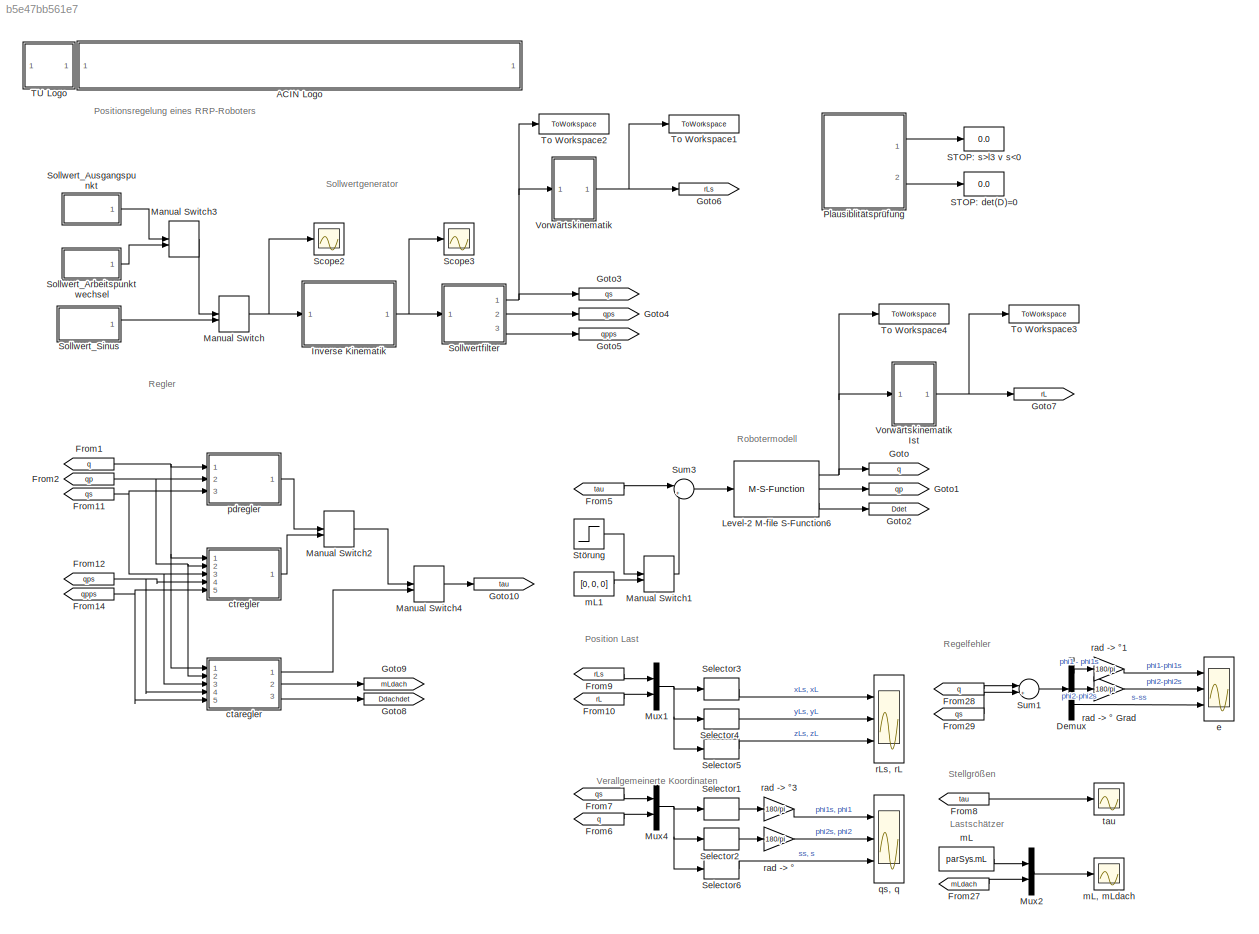
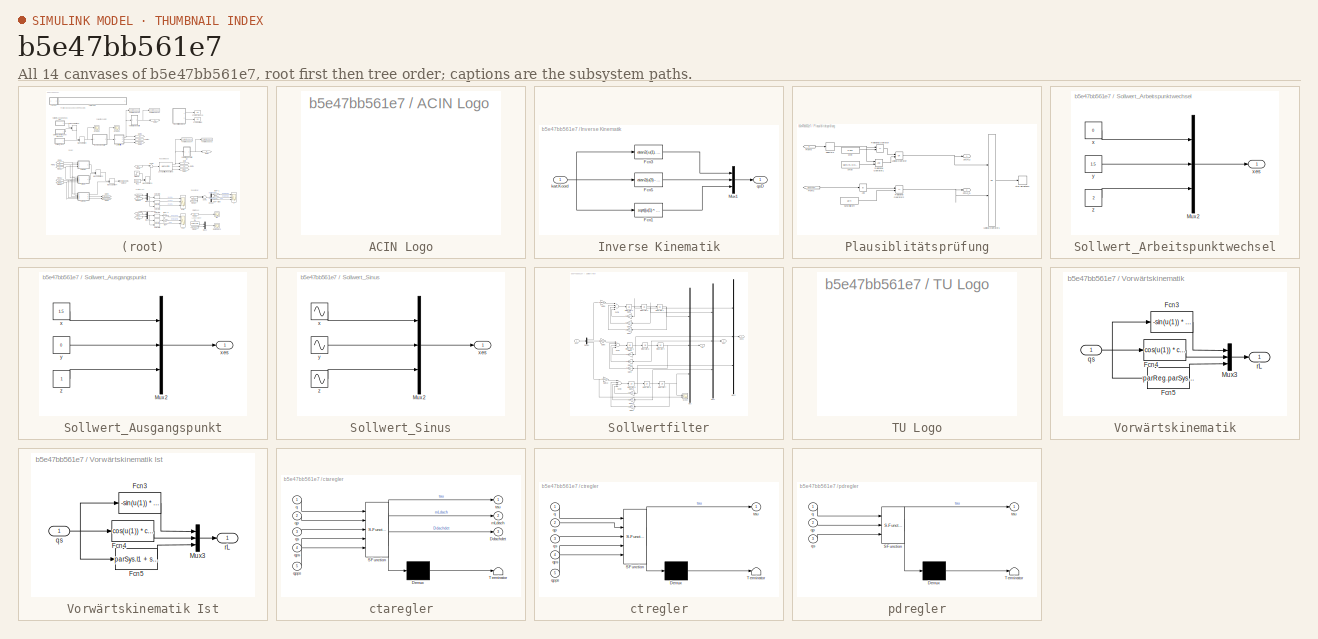
[diagram: thumbnail index - all 14 canvases of the model, root first then tree order]
MODEL slx_b5e47bb561e7
KIND model
CONFIG InitFcn = set_parameter
CONFIG StartFcn = set_parameter
CONFIG StopFcn = Auswertung
BLOCK [SubSystem] ACIN Logo
  FunctionWithSeparateData = off
  MaskHideContents = off
  MinAlgLoopOccurrences = off
  Opaque = off
  Ports = []
  PropExecContextOutsideSubsystem = off
  RTWSystemCode = Auto
  RequestExecContextInheritance = off
  UserDataPersistent = on
  Variant = off
BLOCK [Demux] Demux
  DisplayOption = bar
  Outputs = 3
  Ports = [1, 3]
BLOCK [From] From1
  CloseFcn = tagdialog Close
  GotoTag = q
  TagVisibility = global
BLOCK [From] From10
  CloseFcn = tagdialog Close
  GotoTag = rL
  TagVisibility = global
BLOCK [From] From11
  CloseFcn = tagdialog Close
  GotoTag = qs
  TagVisibility = global
BLOCK [From] From12
  CloseFcn = tagdialog Close
  GotoTag = qps
  TagVisibility = global
BLOCK [From] From14
  CloseFcn = tagdialog Close
  GotoTag = qpps
  TagVisibility = global
BLOCK [From] From2
  CloseFcn = tagdialog Close
  GotoTag = qp
  TagVisibility = global
BLOCK [From] From27
  CloseFcn = tagdialog Close
  GotoTag = mLdach
  TagVisibility = global
BLOCK [From] From28
  CloseFcn = tagdialog Close
  GotoTag = q
  TagVisibility = global
BLOCK [From] From29
  CloseFcn = tagdialog Close
  GotoTag = qs
  TagVisibility = global
BLOCK [From] From5
  CloseFcn = tagdialog Close
  GotoTag = tau
  TagVisibility = global
BLOCK [From] From6
  CloseFcn = tagdialog Close
  GotoTag = q
  TagVisibility = global
BLOCK [From] From7
  CloseFcn = tagdialog Close
  GotoTag = qs
  TagVisibility = global
BLOCK [From] From8
  CloseFcn = tagdialog Close
  GotoTag = tau
  TagVisibility = global
BLOCK [From] From9
  CloseFcn = tagdialog Close
  GotoTag = rLs
  TagVisibility = global
BLOCK [Goto] Goto
  GotoTag = q
  TagVisibility = global
BLOCK [Goto] Goto1
  GotoTag = qp
  TagVisibility = global
BLOCK [Goto] Goto10
  GotoTag = tau
  TagVisibility = global
BLOCK [Goto] Goto2
  GotoTag = Ddet
  TagVisibility = global
BLOCK [Goto] Goto3
  GotoTag = qs
  TagVisibility = global
BLOCK [Goto] Goto4
  GotoTag = qps
  TagVisibility = global
BLOCK [Goto] Goto5
  GotoTag = qpps
  TagVisibility = global
BLOCK [Goto] Goto6
  GotoTag = rLs
  TagVisibility = global
BLOCK [Goto] Goto7
  GotoTag = rL
  TagVisibility = global
BLOCK [Goto] Goto8
  GotoTag = Ddachdet
  TagVisibility = global
BLOCK [Goto] Goto9
  GotoTag = mLdach
  TagVisibility = global
BLOCK [SubSystem] Inverse Kinematik
  FunctionWithSeparateData = off
  MaskHideContents = off
  MinAlgLoopOccurrences = off
  Opaque = off
  Ports = [1, 1]
  PropExecContextOutsideSubsystem = off
  RTWSystemCode = Auto
  RequestExecContextInheritance = off
  Variant = off
BLOCK [Fcn] Inverse Kinematik/Fcn1
  Expr = sqrt((u(1) ^ 2 + u(2) ^ 2 + u(3) ^ 2 - 2 * u(3) * parReg.parSys.l1 + parReg.parSys.l1 ^ 2)) - parReg.parSys.l2
BLOCK [Fcn] Inverse Kinematik/Fcn3
  Expr = atan2(-u(1), u(2))
BLOCK [Fcn] Inverse Kinematik/Fcn5
  Expr = atan2(u(3) - parReg.parSys.l1, sqrt(u(1) ^ 2 + u(2) ^ 2))
BLOCK [Mux] Inverse Kinematik/Mux1
  DisplayOption = bar
  Inputs = 3
  Ports = [3, 1]
BLOCK [Inport] Inverse Kinematik/kart.Koord
  IconDisplay = Port number
BLOCK [Outport] Inverse Kinematik/qsD
  IconDisplay = Port number
BLOCK [M-S-Function] Level-2 M-file S-Function6
  FunctionName = Roboter_S_m
  Parameters = m1,m2,m3,mL,l1,l2,l3,Ixx1,Iyy1,Izz1,Ixx2,Iyy2,Izz2,Ixx3,Iyy3,Izz3,d1,d2,d3,phi10,phi20,s0
  Ports = [1, 3]
BLOCK [ManualSwitch] Manual Switch
  CurrentSetting = 0
BLOCK [ManualSwitch] Manual Switch1
  CurrentSetting = 0
BLOCK [ManualSwitch] Manual Switch2
  CurrentSetting = 0
BLOCK [ManualSwitch] Manual Switch3
  CurrentSetting = 0
BLOCK [ManualSwitch] Manual Switch4
  CurrentSetting = 0
BLOCK [Mux] Mux1
  DisplayOption = bar
  Inputs = 2
  Ports = [2, 1]
BLOCK [Mux] Mux2
  DisplayOption = bar
  Inputs = 2
  Ports = [2, 1]
BLOCK [Mux] Mux4
  DisplayOption = bar
  Inputs = 2
  Ports = [2, 1]
BLOCK [SubSystem] Plausiblitätsprüfung
  FunctionWithSeparateData = off
  MaskHideContents = off
  MinAlgLoopOccurrences = off
  Opaque = off
  Ports = [0, 2]
  PropExecContextOutsideSubsystem = off
  RTWSystemCode = Auto
  RequestExecContextInheritance = off
  Variant = off
BLOCK [Abs] Plausiblitätsprüfung/Abs
  SaturateOnIntegerOverflow = off
BLOCK [From] Plausiblitätsprüfung/From2
  CloseFcn = tagdialog Close
  GotoTag = Ddachdet
  TagVisibility = global
BLOCK [From] Plausiblitätsprüfung/From6
  CloseFcn = tagdialog Close
  GotoTag = q
  TagVisibility = global
BLOCK [Logic] Plausiblitätsprüfung/Logical Operator
  AllPortsSameDT = off
  Operator = OR
  OutDataTypeStr = boolean
  Ports = [2, 1]
BLOCK [Logic] Plausiblitätsprüfung/Logical Operator1
  AllPortsSameDT = off
  Operator = OR
  OutDataTypeStr = boolean
  Ports = [2, 1]
BLOCK [RelationalOperator] Plausiblitätsprüfung/Relational Operator
  InputSameDT = off
  Operator = <=
  OutDataTypeStr = boolean
  Ports = [2, 1]
BLOCK [RelationalOperator] Plausiblitätsprüfung/Relational Operator1
  InputSameDT = off
  OutDataTypeStr = boolean
  Ports = [2, 1]
BLOCK [RelationalOperator] Plausiblitätsprüfung/Relational Operator2
  InputSameDT = off
  Operator = <=
  OutDataTypeStr = boolean
  Ports = [2, 1]
BLOCK [Outport] Plausiblitätsprüfung/STOP_D
  IconDisplay = Port number
  Port = 2
BLOCK [Outport] Plausiblitätsprüfung/STOP_s
  IconDisplay = Port number
BLOCK [Constant] Plausiblitätsprüfung/Schwellwert
  Value = 1e-4
BLOCK [Selector] Plausiblitätsprüfung/Selector3
  IndexOptions = Index vector (dialog)
  Indices = [3]
  InputPortWidth = 3
  OutputSizes = 1
  Ports = [1, 1]
BLOCK [Stop] Plausiblitätsprüfung/Stop Simulation1
BLOCK [Constant] Plausiblitätsprüfung/smax
  Value = parSys.l3-0.001
BLOCK [Constant] Plausiblitätsprüfung/smin
  Value = 0.001
BLOCK [Display] STOP: det(D)=0
  Decimation = 1
  Ports = [1]
BLOCK [Display] STOP: s>l3 v s<0
  Decimation = 1
  Ports = [1]
BLOCK [Scope] Scope2
  DataFormat = StructureWithTime
  Decimation = 1
  Grid = on
  LimitDataPoints = off
  MaxDataPoints = 5000
  Ports = [1]
  SampleInput = off
  SampleTime = -1
  SaveName = ScopeData2
  SaveToWorkspace = off
  ShowLegends = off
  TickLabels = OneTimeTick
  TimeRange = auto
  YMax = 1.6875
  YMin = -0.1875
  ZoomMode = on
BLOCK [Scope] Scope3
  DataFormat = StructureWithTime
  Decimation = 1
  Grid = on
  LimitDataPoints = off
  MaxDataPoints = 5000
  Ports = [1]
  SampleInput = off
  SampleTime = -1
  SaveName = ScopeData3
  SaveToWorkspace = off
  ShowLegends = off
  TickLabels = OneTimeTick
  TimeRange = auto
  YMax = 1.1
  YMin = -1.2
  ZoomMode = on
BLOCK [Selector] Selector1
  IndexOptions = Index vector (dialog)
  Indices = [1 4]
  InputPortWidth = 6
  OutputSizes = 1
  Ports = [1, 1]
BLOCK [Selector] Selector2
  IndexOptions = Index vector (dialog)
  Indices = [2 5]
  InputPortWidth = 6
  OutputSizes = 1
  Ports = [1, 1]
BLOCK [Selector] Selector3
  IndexOptions = Index vector (dialog)
  Indices = [1 4]
  InputPortWidth = 6
  OutputSizes = 1
  Ports = [1, 1]
BLOCK [Selector] Selector4
  IndexOptions = Index vector (dialog)
  Indices = [2 5]
  InputPortWidth = 6
  OutputSizes = 1
  Ports = [1, 1]
BLOCK [Selector] Selector5
  IndexOptions = Index vector (dialog)
  Indices = [3 6]
  InputPortWidth = 6
  OutputSizes = 1
  Ports = [1, 1]
BLOCK [Selector] Selector6
  IndexOptions = Index vector (dialog)
  Indices = [3 6]
  InputPortWidth = 6
  OutputSizes = 1
  Ports = [1, 1]
BLOCK [SubSystem] Sollwert_Arbeitspunktwechsel
  FunctionWithSeparateData = off
  MaskHideContents = off
  MinAlgLoopOccurrences = off
  Opaque = off
  Ports = [0, 1]
  PropExecContextOutsideSubsystem = off
  RTWSystemCode = Auto
  RequestExecContextInheritance = off
  Variant = off
BLOCK [Mux] Sollwert_Arbeitspunktwechsel/Mux2
  DisplayOption = bar
  Inputs = 3
  Ports = [3, 1]
BLOCK [Constant] Sollwert_Arbeitspunktwechsel/x
  Value = 0
BLOCK [Outport] Sollwert_Arbeitspunktwechsel/xes
  IconDisplay = Port number
BLOCK [Constant] Sollwert_Arbeitspunktwechsel/y
  Value = 1.5
BLOCK [Constant] Sollwert_Arbeitspunktwechsel/z
  Value = 2
BLOCK [SubSystem] Sollwert_Ausgangspunkt
  FunctionWithSeparateData = off
  MaskHideContents = off
  MinAlgLoopOccurrences = off
  Opaque = off
  Ports = [0, 1]
  PropExecContextOutsideSubsystem = off
  RTWSystemCode = Auto
  RequestExecContextInheritance = off
  Variant = off
BLOCK [Mux] Sollwert_Ausgangspunkt/Mux2
  DisplayOption = bar
  Inputs = 3
  Ports = [3, 1]
BLOCK [Constant] Sollwert_Ausgangspunkt/x
  Value = 1.5
BLOCK [Outport] Sollwert_Ausgangspunkt/xes
  IconDisplay = Port number
BLOCK [Constant] Sollwert_Ausgangspunkt/y
  Value = 0
BLOCK [Constant] Sollwert_Ausgangspunkt/z
BLOCK [SubSystem] Sollwert_Sinus
  FunctionWithSeparateData = off
  MaskHideContents = off
  MinAlgLoopOccurrences = off
  Opaque = off
  Ports = [0, 1]
  PropExecContextOutsideSubsystem = off
  RTWSystemCode = Auto
  RequestExecContextInheritance = off
  Variant = off
BLOCK [Mux] Sollwert_Sinus/Mux2
  DisplayOption = bar
  Inputs = 3
  Ports = [3, 1]
BLOCK [Sin] Sollwert_Sinus/x
  Amplitude = 1.5
  Frequency = 2*pi*parReg.traj_fKreis
  Phase = pi/2
  Ports = [0, 1]
  SampleTime = 0
BLOCK [Outport] Sollwert_Sinus/xes
  IconDisplay = Port number
BLOCK [Sin] Sollwert_Sinus/y
  Amplitude = 1.5
  Frequency = 2*pi*parReg.traj_fKreis
  Ports = [0, 1]
  SampleTime = 0
BLOCK [Sin] Sollwert_Sinus/z
  Amplitude = 0.5
  Bias = 1.5
  Frequency = 2*pi*parReg.traj_fz
  Phase = -pi/2
  Ports = [0, 1]
  SampleTime = 0
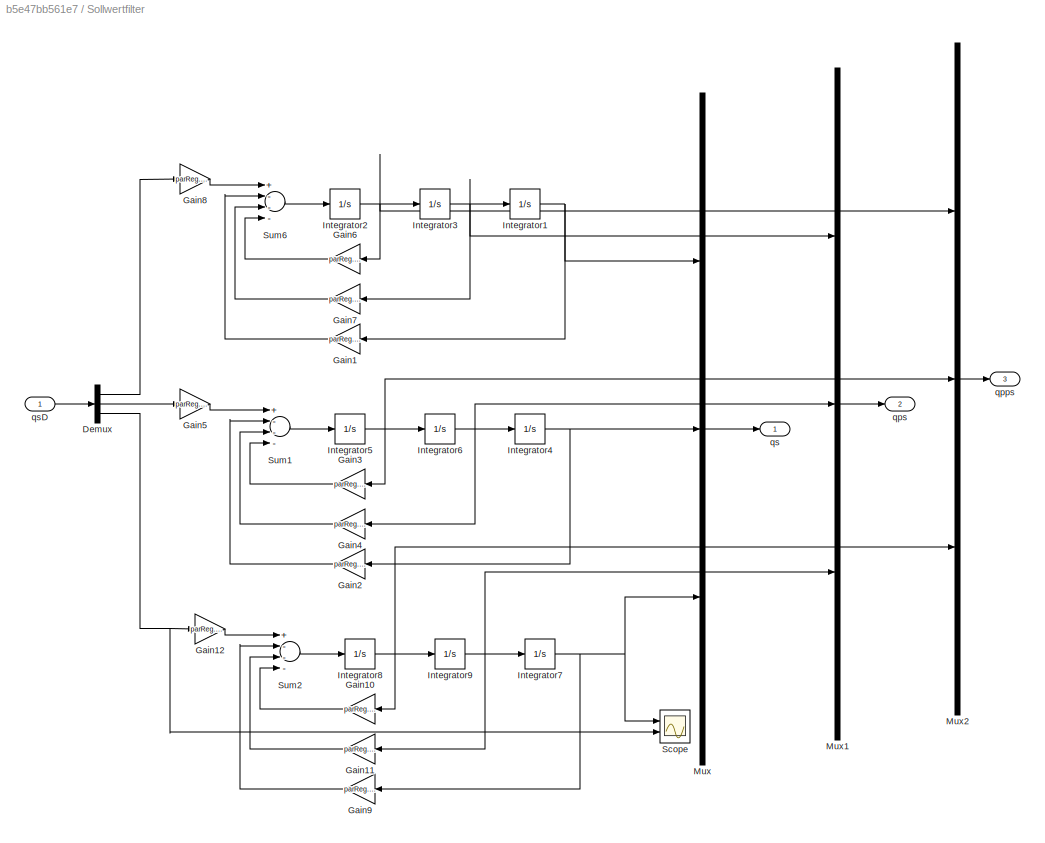
BLOCK [SubSystem] Sollwertfilter
  FunctionWithSeparateData = off
  MaskHideContents = off
  MinAlgLoopOccurrences = off
  Opaque = off
  Ports = [1, 3]
  PropExecContextOutsideSubsystem = off
  RTWSystemCode = Auto
  RequestExecContextInheritance = off
  Variant = off
BLOCK [Demux] Sollwertfilter/Demux
  DisplayOption = bar
  Outputs = 3
  Ports = [1, 3]
BLOCK [Gain] Sollwertfilter/Gain1
  Gain = parReg.par_filt_a0
BLOCK [Gain] Sollwertfilter/Gain10
  Gain = parReg.par_filt_a2
BLOCK [Gain] Sollwertfilter/Gain11
  Gain = parReg.par_filt_a1
BLOCK [Gain] Sollwertfilter/Gain12
  Gain = parReg.par_filt_V
BLOCK [Gain] Sollwertfilter/Gain2
  Gain = parReg.par_filt_a0
BLOCK [Gain] Sollwertfilter/Gain3
  Gain = parReg.par_filt_a2
BLOCK [Gain] Sollwertfilter/Gain4
  Gain = parReg.par_filt_a1
BLOCK [Gain] Sollwertfilter/Gain5
  Gain = parReg.par_filt_V
BLOCK [Gain] Sollwertfilter/Gain6
  Gain = parReg.par_filt_a2
BLOCK [Gain] Sollwertfilter/Gain7
  Gain = parReg.par_filt_a1
BLOCK [Gain] Sollwertfilter/Gain8
  Gain = parReg.par_filt_V
BLOCK [Gain] Sollwertfilter/Gain9
  Gain = parReg.par_filt_a0
BLOCK [Integrator] Sollwertfilter/Integrator1
  InitialCondition = parReg.traj_phi10
  Ports = [1, 1]
BLOCK [Integrator] Sollwertfilter/Integrator2
  Ports = [1, 1]
BLOCK [Integrator] Sollwertfilter/Integrator3
  Ports = [1, 1]
BLOCK [Integrator] Sollwertfilter/Integrator4
  InitialCondition = parReg.traj_phi20
  Ports = [1, 1]
BLOCK [Integrator] Sollwertfilter/Integrator5
  Ports = [1, 1]
BLOCK [Integrator] Sollwertfilter/Integrator6
  Ports = [1, 1]
BLOCK [Integrator] Sollwertfilter/Integrator7
  InitialCondition = parReg.traj_s0
  Ports = [1, 1]
BLOCK [Integrator] Sollwertfilter/Integrator8
  Ports = [1, 1]
BLOCK [Integrator] Sollwertfilter/Integrator9
  Ports = [1, 1]
BLOCK [Mux] Sollwertfilter/Mux
  DisplayOption = bar
  Inputs = 3
  Ports = [3, 1]
BLOCK [Mux] Sollwertfilter/Mux1
  DisplayOption = bar
  Inputs = 3
  Ports = [3, 1]
BLOCK [Mux] Sollwertfilter/Mux2
  DisplayOption = bar
  Inputs = 3
  Ports = [3, 1]
BLOCK [Scope] Sollwertfilter/Scope
  DataFormat = StructureWithTime
  Decimation = 1
  Grid = on
  LimitDataPoints = off
  MaxDataPoints = 5000
  NumInputPorts = 2
  Ports = [2]
  SampleInput = off
  SampleTime = -1
  SaveName = ScopeData8
  SaveToWorkspace = off
  ShowLegends = off
  TickLabels = OneTimeTick
  TimeRange = auto
  YMax = 5~5
  YMin = -5~-5
  ZoomMode = on
BLOCK [Sum] Sollwertfilter/Sum1
  Inputs = +---
  Ports = [4, 1]
BLOCK [Sum] Sollwertfilter/Sum2
  Inputs = +---
  Ports = [4, 1]
BLOCK [Sum] Sollwertfilter/Sum6
  Inputs = +---
  Ports = [4, 1]
BLOCK [Outport] Sollwertfilter/qpps
  IconDisplay = Port number
  Port = 3
BLOCK [Outport] Sollwertfilter/qps
  IconDisplay = Port number
  Port = 2
BLOCK [Outport] Sollwertfilter/qs
  IconDisplay = Port number
BLOCK [Inport] Sollwertfilter/qsD
  IconDisplay = Port number
BLOCK [Step] Störung
  After = [300, 300, 200]
  SampleTime = 0
BLOCK [Sum] Sum1
  IconShape = round
  InputSameDT = off
  Inputs = |+-
  OutDataTypeStr = Inherit: Inherit via internal rule
  Ports = [2, 1]
  SaturateOnIntegerOverflow = off
BLOCK [Sum] Sum3
  IconShape = round
  InputSameDT = off
  Inputs = |++
  OutDataTypeStr = Inherit: Inherit via internal rule
  Ports = [2, 1]
  SaturateOnIntegerOverflow = off
BLOCK [SubSystem] TU Logo
  FunctionWithSeparateData = off
  MaskHideContents = off
  MinAlgLoopOccurrences = off
  Opaque = off
  Ports = []
  PropExecContextOutsideSubsystem = off
  RTWSystemCode = Auto
  RequestExecContextInheritance = off
  UserDataPersistent = on
  Variant = off
BLOCK [ToWorkspace] To Workspace1
  MaxDataPoints = inf
  Ports = [1]
  SampleTime = -1
  SaveFormat = Structure With Time
  VariableName = simout_rLs
BLOCK [ToWorkspace] To Workspace2
  MaxDataPoints = inf
  Ports = [1]
  SampleTime = -1
  SaveFormat = Structure With Time
  VariableName = simout_qs
BLOCK [ToWorkspace] To Workspace3
  MaxDataPoints = inf
  Ports = [1]
  SampleTime = -1
  SaveFormat = Structure With Time
  VariableName = simout_rL
BLOCK [ToWorkspace] To Workspace4
  MaxDataPoints = inf
  Ports = [1]
  SampleTime = -1
  SaveFormat = Structure With Time
  VariableName = simout_q
BLOCK [SubSystem] Vorwärtskinematik
  FunctionWithSeparateData = off
  MaskHideContents = off
  MinAlgLoopOccurrences = off
  Opaque = off
  Ports = [1, 1]
  PropExecContextOutsideSubsystem = off
  RTWSystemCode = Auto
  RequestExecContextInheritance = off
  Variant = off
BLOCK [SubSystem] Vorwärtskinematik Ist
  FunctionWithSeparateData = off
  MaskHideContents = off
  MinAlgLoopOccurrences = off
  Opaque = off
  Ports = [1, 1]
  PropExecContextOutsideSubsystem = off
  RTWSystemCode = Auto
  RequestExecContextInheritance = off
  Variant = off
BLOCK [Fcn] Vorwärtskinematik Ist/Fcn3
  Expr = -sin(u(1)) * cos(u(2)) * (parSys.l2 + u(3))
BLOCK [Fcn] Vorwärtskinematik Ist/Fcn4
  Expr = cos(u(1)) * cos(u(2)) * (parSys.l2 + u(3))
BLOCK [Fcn] Vorwärtskinematik Ist/Fcn5
  Expr = parSys.l1 + sin(u(2)) * parSys.l2 + sin(u(2)) * u(3)
BLOCK [Mux] Vorwärtskinematik Ist/Mux3
  DisplayOption = bar
  Inputs = 3
  Ports = [3, 1]
BLOCK [Inport] Vorwärtskinematik Ist/qs
  IconDisplay = Port number
BLOCK [Outport] Vorwärtskinematik Ist/rL
  IconDisplay = Port number
BLOCK [Fcn] Vorwärtskinematik/Fcn3
  Expr = -sin(u(1)) * cos(u(2)) * (parReg.parSys.l2 + u(3))
BLOCK [Fcn] Vorwärtskinematik/Fcn4
  Expr = cos(u(1)) * cos(u(2)) * (parReg.parSys.l2 + u(3))
BLOCK [Fcn] Vorwärtskinematik/Fcn5
  Expr = parReg.parSys.l1 + sin(u(2)) * parReg.parSys.l2 + sin(u(2)) * u(3)
BLOCK [Mux] Vorwärtskinematik/Mux3
  DisplayOption = bar
  Inputs = 3
  Ports = [3, 1]
BLOCK [Inport] Vorwärtskinematik/qs
  IconDisplay = Port number
BLOCK [Outport] Vorwärtskinematik/rL
  IconDisplay = Port number
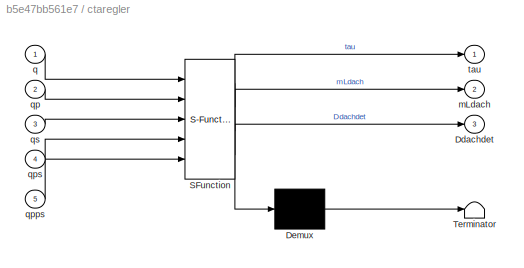
BLOCK [SubSystem] ctaregler
  ErrorFcn = Stateflow.Translate.translate
  FunctionWithSeparateData = off
  MaskHideContents = off
  MinAlgLoopOccurrences = off
  Opaque = off
  PermitHierarchicalResolution = ParametersOnly
  Ports = [5, 3]
  PropExecContextOutsideSubsystem = off
  RTWSystemCode = Auto
  RequestExecContextInheritance = off
  SFBlockType = MATLAB Function
  TreatAsAtomicUnit = on
  Variant = off
BLOCK [Demux] ctaregler/ Demux 
  Outputs = 1
  Ports = [1, 1]
BLOCK [S-Function] ctaregler/ SFunction 
  EnableBusSupport = on
  FunctionName = sf_sfun
  Parameters = parReg,parSys
  PortCounts = [5 4]
  Ports = [5, 4]
  SFunctionDeploymentMode = off
  Tag = Stateflow S-Function Roboter_RRP_Sim_2013a 3
BLOCK [Terminator] ctaregler/ Terminator 
BLOCK [Outport] ctaregler/Ddachdet
  IconDisplay = Port number
  Port = 3
BLOCK [Outport] ctaregler/mLdach
  IconDisplay = Port number
  Port = 2
BLOCK [Inport] ctaregler/q
  IconDisplay = Port number
BLOCK [Inport] ctaregler/qp
  IconDisplay = Port number
  Port = 2
BLOCK [Inport] ctaregler/qpps
  IconDisplay = Port number
  Port = 5
BLOCK [Inport] ctaregler/qps
  IconDisplay = Port number
  Port = 4
BLOCK [Inport] ctaregler/qs
  IconDisplay = Port number
  Port = 3
BLOCK [Outport] ctaregler/tau
  IconDisplay = Port number
BLOCK [SubSystem] ctregler
  ErrorFcn = Stateflow.Translate.translate
  FunctionWithSeparateData = off
  MaskHideContents = off
  MinAlgLoopOccurrences = off
  Opaque = off
  PermitHierarchicalResolution = ParametersOnly
  Ports = [5, 1]
  PropExecContextOutsideSubsystem = off
  RTWSystemCode = Auto
  RequestExecContextInheritance = off
  SFBlockType = MATLAB Function
  TreatAsAtomicUnit = on
  Variant = off
BLOCK [Demux] ctregler/ Demux 
  Outputs = 1
  Ports = [1, 1]
BLOCK [S-Function] ctregler/ SFunction 
  EnableBusSupport = on
  FunctionName = sf_sfun
  Parameters = parReg,parSys
  PortCounts = [5 2]
  Ports = [5, 2]
  SFunctionDeploymentMode = off
  Tag = Stateflow S-Function Roboter_RRP_Sim_2013a 1
BLOCK [Terminator] ctregler/ Terminator 
BLOCK [Inport] ctregler/q
  IconDisplay = Port number
BLOCK [Inport] ctregler/qp
  IconDisplay = Port number
  Port = 2
BLOCK [Inport] ctregler/qpps
  IconDisplay = Port number
  Port = 5
BLOCK [Inport] ctregler/qps
  IconDisplay = Port number
  Port = 4
BLOCK [Inport] ctregler/qs
  IconDisplay = Port number
  Port = 3
BLOCK [Outport] ctregler/tau
  IconDisplay = Port number
BLOCK [Scope] e
  DataFormat = StructureWithTime
  Decimation = 1
  Grid = on
  LimitDataPoints = off
  MaxDataPoints = 5000
  NumInputPorts = 3
  Ports = [3]
  SampleInput = off
  SampleTime = -1
  SaveName = ScopeData7
  SaveToWorkspace = off
  ShowLegends = off
  TickLabels = OneTimeTick
  TimeRange = 5
  YMax = 50.62503~50.66531~0.28152
  YMin = -5.62523~-5.98776~-0.03366
  ZoomMode = on
BLOCK [Constant] mL
  Value = parSys.mL
BLOCK [Scope] mL, mLdach
  DataFormat = StructureWithTime
  Decimation = 1
  Grid = on
  LimitDataPoints = off
  MaxDataPoints = 5000
  Ports = [1]
  SampleInput = off
  SampleTime = -1
  SaveName = ScopeData6
  SaveToWorkspace = off
  ShowLegends = off
  TickLabels = OneTimeTick
  TimeRange = 5
  YMax = 53.75
  YMin = 16.25
  ZoomMode = on
BLOCK [Constant] mL1
  Value = [0, 0, 0]
BLOCK [SubSystem] pdregler
  ErrorFcn = Stateflow.Translate.translate
  FunctionWithSeparateData = off
  MaskHideContents = off
  MinAlgLoopOccurrences = off
  Opaque = off
  PermitHierarchicalResolution = ParametersOnly
  Ports = [3, 1]
  PropExecContextOutsideSubsystem = off
  RTWSystemCode = Auto
  RequestExecContextInheritance = off
  SFBlockType = MATLAB Function
  TreatAsAtomicUnit = on
  Variant = off
BLOCK [Demux] pdregler/ Demux 
  Outputs = 1
  Ports = [1, 1]
BLOCK [S-Function] pdregler/ SFunction 
  EnableBusSupport = on
  FunctionName = sf_sfun
  Parameters = parReg,parSys
  PortCounts = [3 2]
  Ports = [3, 2]
  SFunctionDeploymentMode = off
  Tag = Stateflow S-Function Roboter_RRP_Sim_2013a 2
BLOCK [Terminator] pdregler/ Terminator 
BLOCK [Inport] pdregler/q
  IconDisplay = Port number
BLOCK [Inport] pdregler/qp
  IconDisplay = Port number
  Port = 2
BLOCK [Inport] pdregler/qs
  IconDisplay = Port number
  Port = 3
BLOCK [Outport] pdregler/tau
  IconDisplay = Port number
BLOCK [Scope] qs, q
  DataFormat = StructureWithTime
  Decimation = 1
  Grid = on
  LimitDataPoints = off
  MaxDataPoints = 5000
  NumInputPorts = 3
  Ports = [3]
  SampleInput = off
  SampleTime = -1
  SaveName = ScopeData
  SaveToWorkspace = off
  ShowLegends = off
  TickLabels = OneTimeTick
  TimeRange = auto
  YMax = -85.5~0.1~0.500003
  YMin = -94.5~0~0.5
  ZoomMode = on
BLOCK [Scope] rLs, rL
  DataFormat = StructureWithTime
  Decimation = 1
  Grid = on
  LimitDataPoints = off
  MaxDataPoints = 5000
  NumInputPorts = 3
  Ports = [3]
  SampleInput = off
  SampleTime = -1
  SaveName = ScopeData5
  SaveToWorkspace = off
  ShowLegends = off
  TickLabels = OneTimeTick
  TimeRange = 3
  YMax = 1.575~9.18486e-017~1.0025
  YMin = 1.425~9.18485e-017~1
  ZoomMode = on
BLOCK [Gain] rad -> °
  Gain = 180/pi
  OutDataTypeStr = Inherit: Inherit via internal rule
  ParamDataTypeStr = Inherit: Inherit via internal rule
  SaturateOnIntegerOverflow = off
BLOCK [Gain] rad -> ° Grad
  Gain = 180/pi
  OutDataTypeStr = Inherit: Inherit via internal rule
  ParamDataTypeStr = Inherit: Inherit via internal rule
  SaturateOnIntegerOverflow = off
BLOCK [Gain] rad -> °1
  Gain = 180/pi
  OutDataTypeStr = Inherit: Inherit via internal rule
  ParamDataTypeStr = Inherit: Inherit via internal rule
  SaturateOnIntegerOverflow = off
BLOCK [Gain] rad -> °3
  Gain = 180/pi
  OutDataTypeStr = Inherit: Inherit via internal rule
  ParamDataTypeStr = Inherit: Inherit via internal rule
  SaturateOnIntegerOverflow = off
BLOCK [Scope] tau
  DataFormat = StructureWithTime
  Decimation = 1
  Grid = on
  LimitDataPoints = off
  MaxDataPoints = 5000
  Ports = [1]
  SampleInput = off
  SampleTime = -1
  SaveName = ScopeData1
  SaveToWorkspace = off
  ShowLegends = off
  TickLabels = OneTimeTick
  TimeRange = auto
  YMax = 1938.98967
  YMin = -1150.15255
  ZoomMode = on
ANNOTATION (root): Lastschätzer
ANNOTATION (root): Position Last
ANNOTATION (root): Positionsregelung eines RRP-Roboters
ANNOTATION (root): Regelfehler
ANNOTATION (root): Regler
ANNOTATION (root): Robotermodell
ANNOTATION (root): Sollwertgenerator
ANNOTATION (root): Stellgrößen
ANNOTATION (root): Verallgemeinerte Koordinaten
LINE Demux:1 -> rad -> °1:1
LINE Demux:2 -> rad -> ° Grad:1
LINE Demux:3 -> e:3
LINE From10:1 -> Mux1:2
NET From11:1 -> ctaregler:3, ctregler:3, pdregler:3
NET From12:1 -> ctaregler:4, ctregler:4
NET From14:1 -> ctaregler:5, ctregler:5
NET From1:1 -> ctaregler:1, ctregler:1, pdregler:1
LINE From27:1 -> Mux2:2
LINE From28:1 -> Sum1:1
LINE From29:1 -> Sum1:2
NET From2:1 -> ctaregler:2, ctregler:2, pdregler:2
LINE From5:1 -> Sum3:1
LINE From6:1 -> Mux4:2
LINE From7:1 -> Mux4:1
LINE From8:1 -> tau:1
LINE From9:1 -> Mux1:1
LINE Inverse Kinematik/Fcn1:1 -> Inverse Kinematik/Mux1:3
LINE Inverse Kinematik/Fcn3:1 -> Inverse Kinematik/Mux1:1
LINE Inverse Kinematik/Fcn5:1 -> Inverse Kinematik/Mux1:2
LINE Inverse Kinematik/Mux1:1 -> Inverse Kinematik/qsD:1
NET Inverse Kinematik/kart.Koord:1 -> Inverse Kinematik/Fcn1:1, Inverse Kinematik/Fcn3:1, Inverse Kinematik/Fcn5:1
NET Inverse Kinematik:1 -> Scope3:1, Sollwertfilter:1
NET Level-2 M-file S-Function6:1 -> Goto:1, To Workspace4:1, Vorwärtskinematik Ist:1
LINE Level-2 M-file S-Function6:2 -> Goto1:1
LINE Level-2 M-file S-Function6:3 -> Goto2:1
LINE Manual Switch1:1 -> Sum3:2
LINE Manual Switch2:1 -> Manual Switch4:1
LINE Manual Switch3:1 -> Manual Switch:1
LINE Manual Switch4:1 -> Goto10:1
NET Manual Switch:1 -> Inverse Kinematik:1, Scope2:1
NET Mux1:1 -> Selector3:1, Selector4:1, Selector5:1
LINE Mux2:1 -> mL, mLdach:1
NET Mux4:1 -> Selector1:1, Selector2:1, Selector6:1
LINE Plausiblitätsprüfung/Abs:1 -> Plausiblitätsprüfung/Relational Operator2:1
LINE Plausiblitätsprüfung/From2:1 -> Plausiblitätsprüfung/Abs:1
LINE Plausiblitätsprüfung/From6:1 -> Plausiblitätsprüfung/Selector3:1
LINE Plausiblitätsprüfung/Logical Operator1:1 -> Plausiblitätsprüfung/Stop Simulation1:1
NET Plausiblitätsprüfung/Logical Operator:1 -> Plausiblitätsprüfung/Logical Operator1:1, Plausiblitätsprüfung/STOP_s:1
LINE Plausiblitätsprüfung/Relational Operator1:1 -> Plausiblitätsprüfung/Logical Operator:2
NET Plausiblitätsprüfung/Relational Operator2:1 -> Plausiblitätsprüfung/Logical Operator1:2, Plausiblitätsprüfung/STOP_D:1
LINE Plausiblitätsprüfung/Relational Operator:1 -> Plausiblitätsprüfung/Logical Operator:1
LINE Plausiblitätsprüfung/Schwellwert:1 -> Plausiblitätsprüfung/Relational Operator2:2
NET Plausiblitätsprüfung/Selector3:1 -> Plausiblitätsprüfung/Relational Operator1:1, Plausiblitätsprüfung/Relational Operator:1
LINE Plausiblitätsprüfung/smax:1 -> Plausiblitätsprüfung/Relational Operator1:2
LINE Plausiblitätsprüfung/smin:1 -> Plausiblitätsprüfung/Relational Operator:2
LINE Plausiblitätsprüfung:1 -> STOP: s>l3 v s<0:1
LINE Plausiblitätsprüfung:2 -> STOP: det(D)=0:1
LINE Selector1:1 -> rad -> °3:1
LINE Selector2:1 -> rad -> °:1
LINE Selector3:1 -> rLs, rL:1
LINE Selector4:1 -> rLs, rL:2
LINE Selector5:1 -> rLs, rL:3
LINE Selector6:1 -> qs, q:3
LINE Sollwert_Arbeitspunktwechsel/Mux2:1 -> Sollwert_Arbeitspunktwechsel/xes:1
LINE Sollwert_Arbeitspunktwechsel/x:1 -> Sollwert_Arbeitspunktwechsel/Mux2:1
LINE Sollwert_Arbeitspunktwechsel/y:1 -> Sollwert_Arbeitspunktwechsel/Mux2:2
LINE Sollwert_Arbeitspunktwechsel/z:1 -> Sollwert_Arbeitspunktwechsel/Mux2:3
LINE Sollwert_Arbeitspunktwechsel:1 -> Manual Switch3:2
LINE Sollwert_Ausgangspunkt/Mux2:1 -> Sollwert_Ausgangspunkt/xes:1
LINE Sollwert_Ausgangspunkt/x:1 -> Sollwert_Ausgangspunkt/Mux2:1
LINE Sollwert_Ausgangspunkt/y:1 -> Sollwert_Ausgangspunkt/Mux2:2
LINE Sollwert_Ausgangspunkt/z:1 -> Sollwert_Ausgangspunkt/Mux2:3
LINE Sollwert_Ausgangspunkt:1 -> Manual Switch3:1
LINE Sollwert_Sinus/Mux2:1 -> Sollwert_Sinus/xes:1
LINE Sollwert_Sinus/x:1 -> Sollwert_Sinus/Mux2:1
LINE Sollwert_Sinus/y:1 -> Sollwert_Sinus/Mux2:2
LINE Sollwert_Sinus/z:1 -> Sollwert_Sinus/Mux2:3
LINE Sollwert_Sinus:1 -> Manual Switch:2
LINE Sollwertfilter/Demux:1 -> Sollwertfilter/Gain8:1
LINE Sollwertfilter/Demux:2 -> Sollwertfilter/Gain5:1
NET Sollwertfilter/Demux:3 -> Sollwertfilter/Gain12:1, Sollwertfilter/Scope:2
LINE Sollwertfilter/Gain10:1 -> Sollwertfilter/Sum2:4
LINE Sollwertfilter/Gain11:1 -> Sollwertfilter/Sum2:3
LINE Sollwertfilter/Gain12:1 -> Sollwertfilter/Sum2:1
LINE Sollwertfilter/Gain1:1 -> Sollwertfilter/Sum6:2
LINE Sollwertfilter/Gain2:1 -> Sollwertfilter/Sum1:2
LINE Sollwertfilter/Gain3:1 -> Sollwertfilter/Sum1:4
LINE Sollwertfilter/Gain4:1 -> Sollwertfilter/Sum1:3
LINE Sollwertfilter/Gain5:1 -> Sollwertfilter/Sum1:1
LINE Sollwertfilter/Gain6:1 -> Sollwertfilter/Sum6:4
LINE Sollwertfilter/Gain7:1 -> Sollwertfilter/Sum6:3
LINE Sollwertfilter/Gain8:1 -> Sollwertfilter/Sum6:1
LINE Sollwertfilter/Gain9:1 -> Sollwertfilter/Sum2:2
NET Sollwertfilter/Integrator1:1 -> Sollwertfilter/Gain1:1, Sollwertfilter/Mux:1
NET Sollwertfilter/Integrator2:1 -> Sollwertfilter/Gain6:1, Sollwertfilter/Integrator3:1, Sollwertfilter/Mux2:1
NET Sollwertfilter/Integrator3:1 -> Sollwertfilter/Gain7:1, Sollwertfilter/Integrator1:1, Sollwertfilter/Mux1:1
NET Sollwertfilter/Integrator4:1 -> Sollwertfilter/Gain2:1, Sollwertfilter/Mux:2
NET Sollwertfilter/Integrator5:1 -> Sollwertfilter/Gain3:1, Sollwertfilter/Integrator6:1, Sollwertfilter/Mux2:2
NET Sollwertfilter/Integrator6:1 -> Sollwertfilter/Gain4:1, Sollwertfilter/Integrator4:1, Sollwertfilter/Mux1:2
NET Sollwertfilter/Integrator7:1 -> Sollwertfilter/Gain9:1, Sollwertfilter/Mux:3, Sollwertfilter/Scope:1
NET Sollwertfilter/Integrator8:1 -> Sollwertfilter/Gain10:1, Sollwertfilter/Integrator9:1, Sollwertfilter/Mux2:3
NET Sollwertfilter/Integrator9:1 -> Sollwertfilter/Gain11:1, Sollwertfilter/Integrator7:1, Sollwertfilter/Mux1:3
LINE Sollwertfilter/Mux1:1 -> Sollwertfilter/qps:1
LINE Sollwertfilter/Mux2:1 -> Sollwertfilter/qpps:1
LINE Sollwertfilter/Mux:1 -> Sollwertfilter/qs:1
LINE Sollwertfilter/Sum1:1 -> Sollwertfilter/Integrator5:1
LINE Sollwertfilter/Sum2:1 -> Sollwertfilter/Integrator8:1
LINE Sollwertfilter/Sum6:1 -> Sollwertfilter/Integrator2:1
LINE Sollwertfilter/qsD:1 -> Sollwertfilter/Demux:1
NET Sollwertfilter:1 -> Goto3:1, To Workspace2:1, Vorwärtskinematik:1
LINE Sollwertfilter:2 -> Goto4:1
LINE Sollwertfilter:3 -> Goto5:1
LINE Störung:1 -> Manual Switch1:1
LINE Sum1:1 -> Demux:1
LINE Sum3:1 -> Level-2 M-file S-Function6:1
LINE Vorwärtskinematik Ist/Fcn3:1 -> Vorwärtskinematik Ist/Mux3:1
LINE Vorwärtskinematik Ist/Fcn4:1 -> Vorwärtskinematik Ist/Mux3:2
LINE Vorwärtskinematik Ist/Fcn5:1 -> Vorwärtskinematik Ist/Mux3:3
LINE Vorwärtskinematik Ist/Mux3:1 -> Vorwärtskinematik Ist/rL:1
NET Vorwärtskinematik Ist/qs:1 -> Vorwärtskinematik Ist/Fcn3:1, Vorwärtskinematik Ist/Fcn4:1, Vorwärtskinematik Ist/Fcn5:1
NET Vorwärtskinematik Ist:1 -> Goto7:1, To Workspace3:1
LINE Vorwärtskinematik/Fcn3:1 -> Vorwärtskinematik/Mux3:1
LINE Vorwärtskinematik/Fcn4:1 -> Vorwärtskinematik/Mux3:2
LINE Vorwärtskinematik/Fcn5:1 -> Vorwärtskinematik/Mux3:3
LINE Vorwärtskinematik/Mux3:1 -> Vorwärtskinematik/rL:1
NET Vorwärtskinematik/qs:1 -> Vorwärtskinematik/Fcn3:1, Vorwärtskinematik/Fcn4:1, Vorwärtskinematik/Fcn5:1
NET Vorwärtskinematik:1 -> Goto6:1, To Workspace1:1
LINE ctaregler:1 -> Manual Switch4:2
LINE ctaregler:2 -> Goto9:1
LINE ctaregler:3 -> Goto8:1
LINE ctregler:1 -> Manual Switch2:2
LINE mL1:1 -> Manual Switch1:2
LINE mL:1 -> Mux2:1
LINE pdregler:1 -> Manual Switch2:1
LINE rad -> ° Grad:1 -> e:2
LINE rad -> °1:1 -> e:1
LINE rad -> °3:1 -> qs, q:1
LINE rad -> °:1 -> qs, q:2
note: NET lines group one-source signal fan-out (src -> all destinations, sorted); 1:1 wires keep LINE
